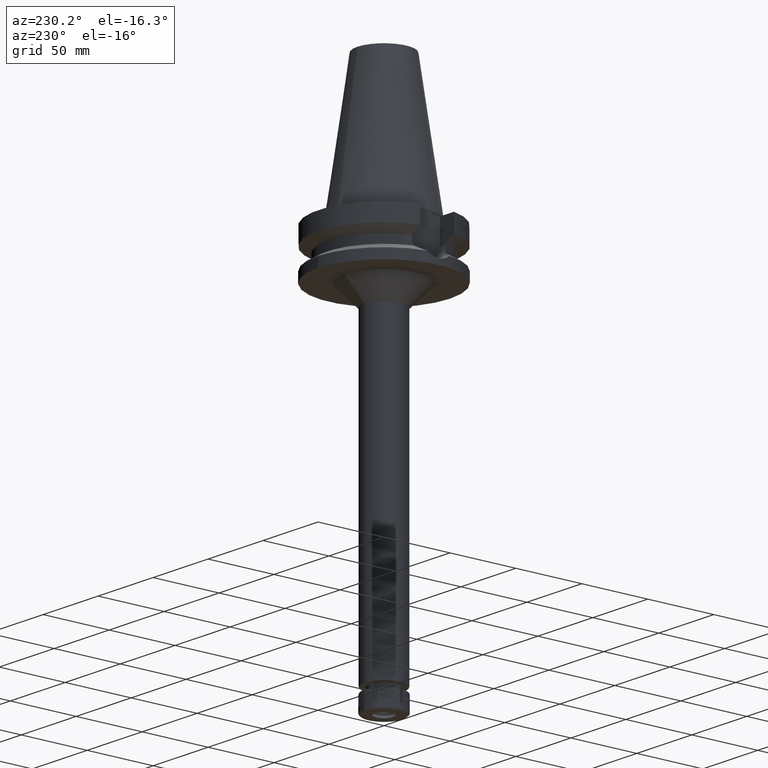
[diagram: clean part render]
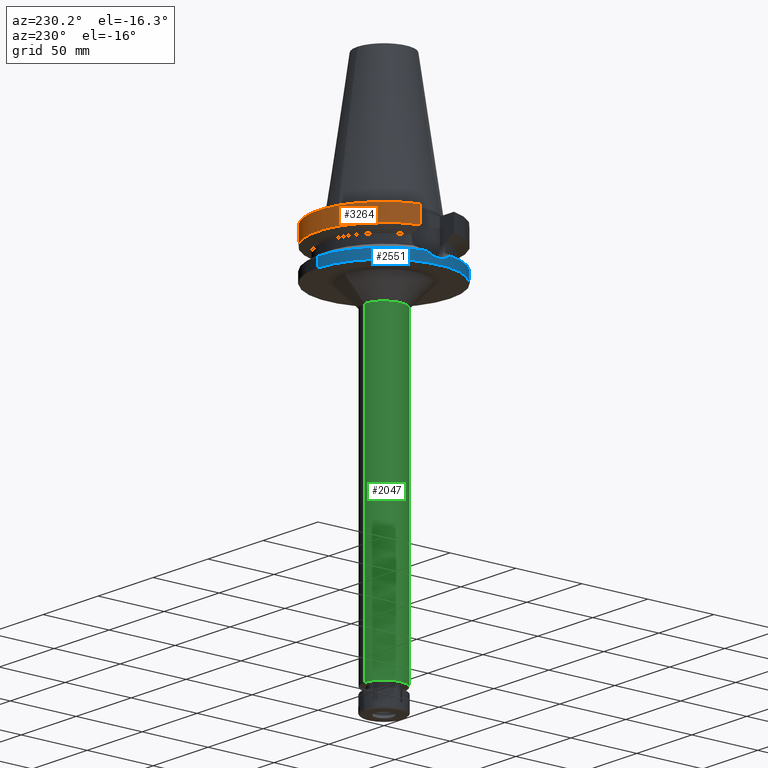
[diagram: same view with three faces highlighted in distinct colors, each labeled with its STEP entity id]
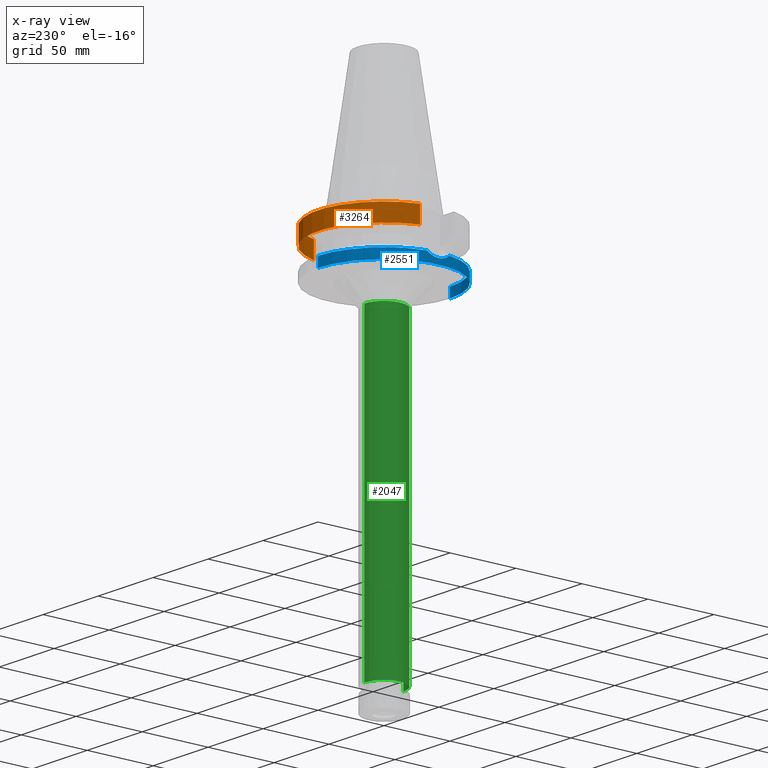
[diagram: x-ray of the same camera — body ghosted, the three highlighted faces saturated]
A machine part, auxiliary view with three faces highlighted in distinct colors.
The next image is the same camera in x-ray (body ghosted, the three faces saturated) — at least one of them is partly hidden behind the body in this view.
Their STEP definitions:

[orange] entity #3264 — the highlighted cylindrical surface (partial cylindrical patch) has radius 50 mm, axis along (0, 0, -1).
#35 = DIRECTION ( 'NONE',  ( 0.0000000000000000000, 1.000000000000000000, 0.0000000000000000000 ) ) ;
#113 = EDGE_LOOP ( 'NONE', ( #1868, #261, #1794, #1499 ) ) ;
#261 = ORIENTED_EDGE ( 'NONE', *, *, #1490, .T. ) ;
#606 = CIRCLE ( 'NONE', #1924, 50.00000000000000000 ) ;
#615 = CARTESIAN_POINT ( 'NONE',  ( -48.32057015392000210, 12.84999999999999964, -3.000000000000000000 ) ) ;
#846 = DIRECTION ( 'NONE',  ( 0.0000000000000000000, 0.0000000000000000000, -1.000000000000000000 ) ) ;
#882 = LINE ( 'NONE', #615, #2633 ) ;
#996 = VERTEX_POINT ( 'NONE', #2087 ) ;
#1105 = CARTESIAN_POINT ( 'NONE',  ( 48.32057015392000210, 12.84999999999999964, -3.000000000000000000 ) ) ;
#1190 = CARTESIAN_POINT ( 'NONE',  ( 48.32056912815000516, 12.85000385725999905, -15.66265768273000170 ) ) ;
#1246 = LINE ( 'NONE', #3455, #2794 ) ;
#1269 = VERTEX_POINT ( 'NONE', #1190 ) ;
#1373 = DIRECTION ( 'NONE',  ( 0.9664114030784185516, 0.2570000000000048357, 0.0000000000000000000 ) ) ;
#1395 = EDGE_CURVE ( 'NONE', #996, #2522, #882, .T. ) ;
#1490 = EDGE_CURVE ( 'NONE', #996, #3231, #606, .T. ) ;
#1499 = ORIENTED_EDGE ( 'NONE', *, *, #3227, .T. ) ;
#1677 = DIRECTION ( 'NONE',  ( 0.0000000000000000000, 0.0000000000000000000, 1.000000000000000000 ) ) ;
#1710 = DIRECTION ( 'NONE',  ( 8.103406434828602822E-08, 3.047167049311851409E-07, -0.9999999999999503730 ) ) ;
#1794 = ORIENTED_EDGE ( 'NONE', *, *, #3561, .F. ) ;
#1868 = ORIENTED_EDGE ( 'NONE', *, *, #1395, .F. ) ;
#1892 = DIRECTION ( 'NONE',  ( 0.0000000000000000000, 0.0000000000000000000, -1.000000000000000000 ) ) ;
#1924 = AXIS2_PLACEMENT_3D ( 'NONE', #1927, #1892, #35 ) ;
#1927 = CARTESIAN_POINT ( 'NONE',  ( 0.0000000000000000000, 2.713082518830999647E-14, -3.000000000000000000 ) ) ;
#1949 = DIRECTION ( 'NONE',  ( 0.0000000000000000000, -1.000000000000000000, 0.0000000000000000000 ) ) ;
#1973 = CIRCLE ( 'NONE', #2390, 50.00000000000002842 ) ;
#2067 = DIRECTION ( 'NONE',  ( 8.100749521826603165E-08, -3.046167948962851084E-07, 0.9999999999999503730 ) ) ;
#2087 = CARTESIAN_POINT ( 'NONE',  ( -48.32057015392000210, 12.84999999999999964, -3.000000000000000000 ) ) ;
#2178 = FACE_OUTER_BOUND ( 'NONE', #113, .T. ) ;
#2213 = CYLINDRICAL_SURFACE ( 'NONE', #2445, 50.00000000000000000 ) ;
#2390 = AXIS2_PLACEMENT_3D ( 'NONE', #2483, #1677, #1373 ) ;
#2445 = AXIS2_PLACEMENT_3D ( 'NONE', #2991, #846, #1949 ) ;
#2483 = CARTESIAN_POINT ( 'NONE',  ( 0.0000000000000000000, 1.006319759053999930E-14, -15.66269223573000069 ) ) ;
#2522 = VERTEX_POINT ( 'NONE', #3324 ) ;
#2633 = VECTOR ( 'NONE', #1710, 1000.000000000000114 ) ;
#2794 = VECTOR ( 'NONE', #2067, 1000.000000000000114 ) ;
#2991 = CARTESIAN_POINT ( 'NONE',  ( 0.0000000000000000000, 2.713082518830999647E-14, 121.5399999999999920 ) ) ;
#3227 = EDGE_CURVE ( 'NONE', #1269, #2522, #1973, .T. ) ;
#3231 = VERTEX_POINT ( 'NONE', #1105 ) ;
#3264 = ADVANCED_FACE ( 'NONE', ( #2178 ), #2213, .T. ) ;
#3324 = CARTESIAN_POINT ( 'NONE',  ( -48.32056912780999625, 12.85000385852000093, -15.66265767138999898 ) ) ;
#3455 = CARTESIAN_POINT ( 'NONE',  ( 48.32056912815000516, 12.85000385725999905, -15.66265768273000170 ) ) ;
#3561 = EDGE_CURVE ( 'NONE', #1269, #3231, #1246, .T. ) ;

[blue] entity #2551 — the highlighted cylindrical surface (partial cylindrical patch) has radius 50 mm, axis along (0, 0, -1).
#14 = FACE_OUTER_BOUND ( 'NONE', #1843, .T. ) ;
#21 = CARTESIAN_POINT ( 'NONE',  ( 0.0000000000000000000, 0.0000000000000000000, -30.73730776426999967 ) ) ;
#38 = DIRECTION ( 'NONE',  ( 0.0000000000000000000, 0.0000000000000000000, -1.000000000000000000 ) ) ;
#55 = DIRECTION ( 'NONE',  ( 0.0000000000000000000, -2.250196262218999978E-14, -1.000000000000000000 ) ) ;
#63 = VERTEX_POINT ( 'NONE', #712 ) ;
#146 = CARTESIAN_POINT ( 'NONE',  ( -49.99662230221205306, 0.6207414330006484349, -33.98741524664919211 ) ) ;
#162 = CARTESIAN_POINT ( 'NONE',  ( -49.99925989466935761, 0.2920325988360544245, -33.99727856927574976 ) ) ;
#185 = CARTESIAN_POINT ( 'NONE',  ( -49.55356340521843350, 6.666442896680409902, -32.13550053028078679 ) ) ;
#201 = CARTESIAN_POINT ( 'NONE',  ( -49.81850067615224020, -4.257788520970071211, -33.27483133674263627 ) ) ;
#213 = CARTESIAN_POINT ( 'NONE',  ( 0.0000000000000000000, 0.0000000000000000000, -30.73730776426999967 ) ) ;
#219 = CARTESIAN_POINT ( 'NONE',  ( -49.55915236643333088, -6.624860017468513718, -32.16063214303511586 ) ) ;
#310 = CARTESIAN_POINT ( 'NONE',  ( 0.0000000000000000000, -50.00000000000000000, -38.00000000000000000 ) ) ;
#334 = CYLINDRICAL_SURFACE ( 'NONE', #1151, 50.00000000000000000 ) ;
#364 = LINE ( 'NONE', #3395, #3352 ) ;
#415 = CARTESIAN_POINT ( 'NONE',  ( -49.66438561404082463, -5.785384698040971330, -32.62558038055501441 ) ) ;
#430 = EDGE_CURVE ( 'NONE', #3303, #2649, #1697, .T. ) ;
#437 = CARTESIAN_POINT ( 'NONE',  ( -49.79647525994440826, -4.506821561904170714, -33.18379325355525111 ) ) ;
#473 = CARTESIAN_POINT ( 'NONE',  ( -49.55691337942529628, 6.641502112422320359, -32.15059053476381479 ) ) ;
#489 = CARTESIAN_POINT ( 'NONE',  ( -49.79162556939954243, 4.560059265765004533, -33.16367918275131643 ) ) ;
#591 = CARTESIAN_POINT ( 'NONE',  ( 1.598721155459999804E-14, -50.00000000000000000, -30.73730776426999967 ) ) ;
#687 = CARTESIAN_POINT ( 'NONE',  ( -49.37876725733201511, 7.862629252347977271, -31.32153765634930309 ) ) ;
#709 = CARTESIAN_POINT ( 'NONE',  ( -49.78985913374697247, -4.579251126680746964, -33.15637680627477835 ) ) ;
#712 = CARTESIAN_POINT ( 'NONE',  ( 0.0000000000000000000, 50.00000000000000000, -38.00000000000000000 ) ) ;
#729 = CARTESIAN_POINT ( 'NONE',  ( -49.64376434260868365, -5.959934966985013460, -32.53602276322837383 ) ) ;
#743 = CARTESIAN_POINT ( 'NONE',  ( -49.72661535078515271, 5.223658653663672879, -32.89185104274513094 ) ) ;
#757 = CARTESIAN_POINT ( 'NONE',  ( -49.79323994620936844, -4.542344490558916981, -33.17038962789947476 ) ) ;
#801 = EDGE_CURVE ( 'NONE', #2649, #63, #364, .T. ) ;
#874 = CARTESIAN_POINT ( 'NONE',  ( 0.0000000000000000000, 2.713082518830999647E-14, 121.5399999999999920 ) ) ;
#972 = CARTESIAN_POINT ( 'NONE',  ( -49.48023312053592804, -7.211662175410109121, -31.80483246713279044 ) ) ;
#992 = CARTESIAN_POINT ( 'NONE',  ( -49.56430563667903044, -6.586247611899100463, -32.18381165453997994 ) ) ;
#1008 = CARTESIAN_POINT ( 'NONE',  ( -49.45255723190357600, 7.378886023177585685, -31.67208132075386473 ) ) ;
#1024 = CARTESIAN_POINT ( 'NONE',  ( -49.26250064874000145, 8.556052234130000045, -30.73730776426999967 ) ) ;
#1042 = CARTESIAN_POINT ( 'NONE',  ( -49.91475367259723583, 3.007087498960580252, -33.66745840162596437 ) ) ;
#1067 = CARTESIAN_POINT ( 'NONE',  ( -49.26250064874000145, 8.556052234130000045, -30.73730776426999967 ) ) ;
#1084 = DIRECTION ( 'NONE',  ( -0.9852500129747439050, 0.1711210446826074982, 0.0000000000000000000 ) ) ;
#1116 = EDGE_CURVE ( 'NONE', #63, #3284, #1614, .T. ) ;
#1151 = AXIS2_PLACEMENT_3D ( 'NONE', #874, #2272, #1452 ) ;
#1245 = CARTESIAN_POINT ( 'NONE',  ( -49.54102752700050871, 6.759015541543238470, -32.07891799701660318 ) ) ;
#1260 = CARTESIAN_POINT ( 'NONE',  ( -49.84620981792906491, -3.924858988777023772, -33.38881025503993527 ) ) ;
#1280 = CARTESIAN_POINT ( 'NONE',  ( -49.70802029757393825, 5.397700648205481677, -32.81298253659019792 ) ) ;
#1301 = CARTESIAN_POINT ( 'NONE',  ( -49.50808888543656394, 6.995919303592035732, -31.92904379053251773 ) ) ;
#1314 = CARTESIAN_POINT ( 'NONE',  ( -49.47566389210825832, 7.222358703738607666, -31.77980350321143987 ) ) ;
#1337 = CARTESIAN_POINT ( 'NONE',  ( 0.0000000000000000000, 2.713082518830999647E-14, -38.00000000000000000 ) ) ;
#1357 = DIRECTION ( 'NONE',  ( 0.0000000000000000000, 0.0000000000000000000, 1.000000000000000000 ) ) ;
#1363 = DIRECTION ( 'NONE',  ( 0.0000000000000000000, -1.000000000000000000, 0.0000000000000000000 ) ) ;
#1398 = EDGE_CURVE ( 'NONE', #3303, #3136, #2191, .T. ) ;
#1437 = CIRCLE ( 'NONE', #3480, 50.00000000000000000 ) ;
#1452 = DIRECTION ( 'NONE',  ( 0.0000000000000000000, -1.000000000000000000, 0.0000000000000000000 ) ) ;
#1461 = LINE ( 'NONE', #1711, #3084 ) ;
#1516 = CARTESIAN_POINT ( 'NONE',  ( -49.55454662017850609, -6.659200857821679698, -32.13988485027196873 ) ) ;
#1521 = ORIENTED_EDGE ( 'NONE', *, *, #1116, .T. ) ;
#1534 = CARTESIAN_POINT ( 'NONE',  ( -49.38307648793662707, -7.861822325969606062, -31.35686306621366626 ) ) ;
#1547 = CARTESIAN_POINT ( 'NONE',  ( -49.52374263285600620, 6.884783914757552026, -32.00057756287812794 ) ) ;
#1569 = CARTESIAN_POINT ( 'NONE',  ( -49.99996721743084294, 0.05829727072340452898, -33.99988892684660868 ) ) ;
#1587 = CARTESIAN_POINT ( 'NONE',  ( -49.55532368836450985, 6.653345309812351616, -32.14343086327603771 ) ) ;
#1614 = CIRCLE ( 'NONE', #3483, 50.00000000000000000 ) ;
#1697 = CIRCLE ( 'NONE', #1993, 50.00000000000000000 ) ;
#1711 = CARTESIAN_POINT ( 'NONE',  ( 0.0000000000000000000, -50.00000000000000000, -30.73730776426999967 ) ) ;
#1737 = CARTESIAN_POINT ( 'NONE',  ( -49.26250064874000145, -8.556052234130000045, -30.73730776426999967 ) ) ;
#1786 = CARTESIAN_POINT ( 'NONE',  ( -49.76566420775071009, 4.836232208550717004, -33.05580285167685872 ) ) ;
#1804 = CARTESIAN_POINT ( 'NONE',  ( -50.00000295204872458, 0.01164965388108061412, -34.00001588674635400 ) ) ;
#1825 = CARTESIAN_POINT ( 'NONE',  ( -49.72311712390489902, -5.265416820987296909, -32.87801647342321587 ) ) ;
#1841 = CARTESIAN_POINT ( 'NONE',  ( -49.92882646901512800, -2.682312062443520606, -33.72291892539629288 ) ) ;
#1843 = EDGE_LOOP ( 'NONE', ( #3319, #1899, #1521, #3583, #2635, #2472 ) ) ;
#1856 = CARTESIAN_POINT ( 'NONE',  ( -49.96636167195140388, 1.856479279095626822, -33.87115146918701214 ) ) ;
#1899 = ORIENTED_EDGE ( 'NONE', *, *, #801, .T. ) ;
#1992 = DIRECTION ( 'NONE',  ( 0.0000000000000000000, 2.152361642122000014E-14, -1.000000000000000000 ) ) ;
#1993 = AXIS2_PLACEMENT_3D ( 'NONE', #21, #38, #1084 ) ;
#2081 = CARTESIAN_POINT ( 'NONE',  ( -49.64904655192941618, 5.923494955665326245, -32.55990987063396602 ) ) ;
#2104 = CARTESIAN_POINT ( 'NONE',  ( -49.99986245585835576, 0.1283175234981940860, -33.99950784653970004 ) ) ;
#2124 = CARTESIAN_POINT ( 'NONE',  ( -49.97919871530381641, 1.474018164729737457, -33.92086491817865834 ) ) ;
#2138 = CARTESIAN_POINT ( 'NONE',  ( -49.75809505790445542, -4.923721357834235590, -33.02465203452997144 ) ) ;
#2150 = DIRECTION ( 'NONE',  ( 0.0000000000000000000, 0.0000000000000000000, -1.000000000000000000 ) ) ;
#2153 = CARTESIAN_POINT ( 'NONE',  ( -49.55545412539905215, -6.652447075092714712, -32.14397514456471328 ) ) ;
#2191 = B_SPLINE_CURVE_WITH_KNOTS ( 'NONE', 3,
 ( #1024, #2372, #687, #1008, #1314, #1301, #1547, #1245, #2679, #185, #1587, #3521, #473, #3505, #2081, #1280, #743, #2660, #1786, #3187, #2647, #3207, #489, #2949, #2914, #1042, #1856, #2124, #2424, #146, #162, #2104, #1569, #1804, #2895, #3225, #2626, #1841, #3240, #3469, #1260, #201, #2354, #437, #757, #2408, #709, #2138, #1825, #415, #729, #2969, #2933, #2699, #992, #219, #3537, #2153, #1516, #972, #1534, #3485 ),
 .UNSPECIFIED., .F., .F.,
 ( 4, 2, 2, 1, 1, 1, 1, 2, 2, 2, 2, 1, 1, 1, 2, 2, 2, 2, 1, 1, 1, 2, 2, 2, 2, 1, 1, 1, 1, 2, 2, 2, 2, 1, 1, 1, 1, 2, 2, 4 ),
 ( 0.0000000000000000000, 0.06250000000000184575, 0.09375000000000265066, 0.1093750000000035250, 0.1171875000000036082, 0.1210937500000039968, 0.1230468750000040384, 0.1240234375000039968, 0.1250000000000039413, 0.1875000000000039135, 0.2187500000000039968, 0.2343750000000038858, 0.2421875000000038858, 0.2460937500000040246, 0.2480468750000042188, 0.2500000000000043854, 0.3750000000000153211, 0.4375000000000207057, 0.4687500000000234257, 0.4843750000000248690, 0.4921875000000255351, 0.4960937500000258682, 0.5000000000000262013, 0.6250000000000373035, 0.6875000000000427436, 0.7187500000000454081, 0.7343750000000467404, 0.7421875000000472955, 0.7460937500000477396, 0.7480468750000480727, 0.7500000000000484057, 0.8125000000000521805, 0.8437500000000540679, 0.8593750000000549560, 0.8671875000000554001, 0.8710937500000555112, 0.8730468750000556222, 0.8740234375000556222, 0.8750000000000557332, 1.000000000000000000 ),
 .UNSPECIFIED. ) ;
#2272 = DIRECTION ( 'NONE',  ( 0.0000000000000000000, 0.0000000000000000000, -1.000000000000000000 ) ) ;
#2347 = CARTESIAN_POINT ( 'NONE',  ( 0.0000000000000000000, 50.00000000000000000, -30.73730776426999967 ) ) ;
#2354 = CARTESIAN_POINT ( 'NONE',  ( -49.80393549962084876, -4.423879956268420344, -33.21466981257104578 ) ) ;
#2372 = CARTESIAN_POINT ( 'NONE',  ( -49.32361394900766527, 8.204185051481150737, -31.05132647194549733 ) ) ;
#2408 = CARTESIAN_POINT ( 'NONE',  ( -49.79107461079500041, -4.566021096741519791, -33.16141588746038593 ) ) ;
#2417 = EDGE_CURVE ( 'NONE', #2525, #3136, #1437, .T. ) ;
#2424 = CARTESIAN_POINT ( 'NONE',  ( -49.99190584568403750, 0.9044780176790983006, -33.96954463281029746 ) ) ;
#2472 = ORIENTED_EDGE ( 'NONE', *, *, #1398, .F. ) ;
#2525 = VERTEX_POINT ( 'NONE', #591 ) ;
#2551 = ADVANCED_FACE ( 'NONE', ( #14 ), #334, .T. ) ;
#2626 = CARTESIAN_POINT ( 'NONE',  ( -49.98159896261032031, -1.536949411038116109, -33.93133951225696876 ) ) ;
#2635 = ORIENTED_EDGE ( 'NONE', *, *, #2417, .T. ) ;
#2647 = CARTESIAN_POINT ( 'NONE',  ( -49.78675707493836455, 4.612953338547553628, -33.14350079346125710 ) ) ;
#2649 = VERTEX_POINT ( 'NONE', #2347 ) ;
#2660 = CARTESIAN_POINT ( 'NONE',  ( -49.75291363759642849, 4.964977956354610811, -33.00243805311444589 ) ) ;
#2679 = CARTESIAN_POINT ( 'NONE',  ( -49.54942552127820221, 6.697131486422703617, -32.11684414791724151 ) ) ;
#2699 = CARTESIAN_POINT ( 'NONE',  ( -49.57452652822112782, -6.509058744670387142, -32.22967720986672191 ) ) ;
#2895 = CARTESIAN_POINT ( 'NONE',  ( -50.00000315967845665, -0.01349012401413720273, -34.00001380809929685 ) ) ;
#2914 = CARTESIAN_POINT ( 'NONE',  ( -49.86288584729864937, 3.778632727069196395, -33.45873245737646329 ) ) ;
#2933 = CARTESIAN_POINT ( 'NONE',  ( -49.59462571550800902, -6.354843512726212396, -32.31944707518070459 ) ) ;
#2949 = CARTESIAN_POINT ( 'NONE',  ( -49.79247224339031419, 4.550812418483420885, -33.16718634193932047 ) ) ;
#2969 = CARTESIAN_POINT ( 'NONE',  ( -49.61126628324425525, -6.223001184839642264, -32.39307413687848225 ) ) ;
#3084 = VECTOR ( 'NONE', #55, 1000.000000000000000 ) ;
#3136 = VERTEX_POINT ( 'NONE', #1737 ) ;
#3187 = CARTESIAN_POINT ( 'NONE',  ( -49.77984236974081256, 4.687179229998780450, -33.11480180019571407 ) ) ;
#3207 = CARTESIAN_POINT ( 'NONE',  ( -49.78968315378072163, 4.581208032285250198, -33.15563038654307348 ) ) ;
#3225 = CARTESIAN_POINT ( 'NONE',  ( -49.99945538266415213, -0.7780990693101008659, -33.99783242690136831 ) ) ;
#3240 = CARTESIAN_POINT ( 'NONE',  ( -49.90690432723097558, -3.065232039780249274, -33.63536116321161273 ) ) ;
#3284 = VERTEX_POINT ( 'NONE', #310 ) ;
#3303 = VERTEX_POINT ( 'NONE', #1067 ) ;
#3319 = ORIENTED_EDGE ( 'NONE', *, *, #430, .T. ) ;
#3350 = DIRECTION ( 'NONE',  ( 0.0000000000000000000, 1.000000000000000000, 0.0000000000000000000 ) ) ;
#3352 = VECTOR ( 'NONE', #1992, 1000.000000000000000 ) ;
#3395 = CARTESIAN_POINT ( 'NONE',  ( 0.0000000000000000000, 50.00000000000000000, -30.73730776426999967 ) ) ;
#3426 = EDGE_CURVE ( 'NONE', #2525, #3284, #1461, .T. ) ;
#3469 = CARTESIAN_POINT ( 'NONE',  ( -49.86752414867613936, -3.638504211321980097, -33.47571031675554565 ) ) ;
#3480 = AXIS2_PLACEMENT_3D ( 'NONE', #213, #2150, #1363 ) ;
#3483 = AXIS2_PLACEMENT_3D ( 'NONE', #1337, #1357, #3350 ) ;
#3485 = CARTESIAN_POINT ( 'NONE',  ( -49.26250064874000145, -8.556052234130000045, -30.73730776426999967 ) ) ;
#3505 = CARTESIAN_POINT ( 'NONE',  ( -49.60547927348513042, 6.278959638692862555, -32.36922144485829023 ) ) ;
#3521 = CARTESIAN_POINT ( 'NONE',  ( -49.55649430030959479, 6.644625772557305687, -32.14870330083957839 ) ) ;
#3537 = CARTESIAN_POINT ( 'NONE',  ( -49.55693464536918214, -6.641411789270195598, -32.15064502706814409 ) ) ;
#3583 = ORIENTED_EDGE ( 'NONE', *, *, #3426, .F. ) ;

[green] entity #2047 — the highlighted cylindrical surface (edge-blend (fillet) strip) has radius 14.75 mm, axis along (0, 0, -1).
#143 = CARTESIAN_POINT ( 'NONE',  ( 0.0000000000000000000, -14.75000000000000000, -283.0000000000000000 ) ) ;
#212 = EDGE_CURVE ( 'NONE', #792, #2960, #2201, .T. ) ;
#271 = ORIENTED_EDGE ( 'NONE', *, *, #2204, .F. ) ;
#286 = DIRECTION ( 'NONE',  ( 0.0000000000000000000, 0.0000000000000000000, 1.000000000000000000 ) ) ;
#344 = AXIS2_PLACEMENT_3D ( 'NONE', #2295, #3132, #612 ) ;
#520 = CARTESIAN_POINT ( 'NONE',  ( 0.0000000000000000000, 2.713082518830999647E-14, -283.0000000000000000 ) ) ;
#568 = ORIENTED_EDGE ( 'NONE', *, *, #212, .T. ) ;
#612 = DIRECTION ( 'NONE',  ( 0.0000000000000000000, -1.000000000000000000, 0.0000000000000000000 ) ) ;
#751 = VECTOR ( 'NONE', #3501, 1000.000000000000000 ) ;
#792 = VERTEX_POINT ( 'NONE', #1160 ) ;
#824 = DIRECTION ( 'NONE',  ( 0.0000000000000000000, 1.000000000000000000, 0.0000000000000000000 ) ) ;
#889 = CIRCLE ( 'NONE', #3036, 14.75000000000000000 ) ;
#1059 = LINE ( 'NONE', #2968, #2282 ) ;
#1137 = FACE_OUTER_BOUND ( 'NONE', #3141, .T. ) ;
#1160 = CARTESIAN_POINT ( 'NONE',  ( 0.0000000000000000000, -14.75000000000000000, -53.00000000000000000 ) ) ;
#1407 = CARTESIAN_POINT ( 'NONE',  ( 0.0000000000000000000, 14.75000000000000000, -283.0000000000000000 ) ) ;
#1531 = LINE ( 'NONE', #2641, #751 ) ;
#1556 = VERTEX_POINT ( 'NONE', #1407 ) ;
#1827 = EDGE_CURVE ( 'NONE', #1556, #2214, #889, .T. ) ;
#1829 = DIRECTION ( 'NONE',  ( 0.0000000000000000000, -1.000000000000000000, 0.0000000000000000000 ) ) ;
#1879 = DIRECTION ( 'NONE',  ( 0.0000000000000000000, 0.0000000000000000000, -1.000000000000000000 ) ) ;
#1884 = EDGE_CURVE ( 'NONE', #2960, #1556, #1059, .T. ) ;
#2047 = ADVANCED_FACE ( 'NONE', ( #1137 ), #2257, .T. ) ;
#2201 = CIRCLE ( 'NONE', #3425, 14.75000000000000000 ) ;
#2204 = EDGE_CURVE ( 'NONE', #792, #2214, #1531, .T. ) ;
#2214 = VERTEX_POINT ( 'NONE', #143 ) ;
#2257 = CYLINDRICAL_SURFACE ( 'NONE', #344, 14.75000000000000000 ) ;
#2282 = VECTOR ( 'NONE', #2423, 1000.000000000000000 ) ;
#2295 = CARTESIAN_POINT ( 'NONE',  ( 0.0000000000000000000, 2.713082518830999647E-14, 121.5399999999999920 ) ) ;
#2423 = DIRECTION ( 'NONE',  ( 0.0000000000000000000, 0.0000000000000000000, -1.000000000000000000 ) ) ;
#2429 = CARTESIAN_POINT ( 'NONE',  ( 0.0000000000000000000, 0.0000000000000000000, -53.00000000000000000 ) ) ;
#2554 = ORIENTED_EDGE ( 'NONE', *, *, #1884, .T. ) ;
#2641 = CARTESIAN_POINT ( 'NONE',  ( 0.0000000000000000000, -14.75000000000000000, -53.00000000000000000 ) ) ;
#2720 = ORIENTED_EDGE ( 'NONE', *, *, #1827, .T. ) ;
#2886 = CARTESIAN_POINT ( 'NONE',  ( 0.0000000000000000000, 14.75000000000000000, -53.00000000000000000 ) ) ;
#2960 = VERTEX_POINT ( 'NONE', #2886 ) ;
#2968 = CARTESIAN_POINT ( 'NONE',  ( 0.0000000000000000000, 14.75000000000000000, -53.00000000000000000 ) ) ;
#3036 = AXIS2_PLACEMENT_3D ( 'NONE', #520, #286, #824 ) ;
#3132 = DIRECTION ( 'NONE',  ( 0.0000000000000000000, 0.0000000000000000000, -1.000000000000000000 ) ) ;
#3141 = EDGE_LOOP ( 'NONE', ( #2720, #271, #568, #2554 ) ) ;
#3425 = AXIS2_PLACEMENT_3D ( 'NONE', #2429, #1879, #1829 ) ;
#3501 = DIRECTION ( 'NONE',  ( 0.0000000000000000000, 0.0000000000000000000, -1.000000000000000000 ) ) ;